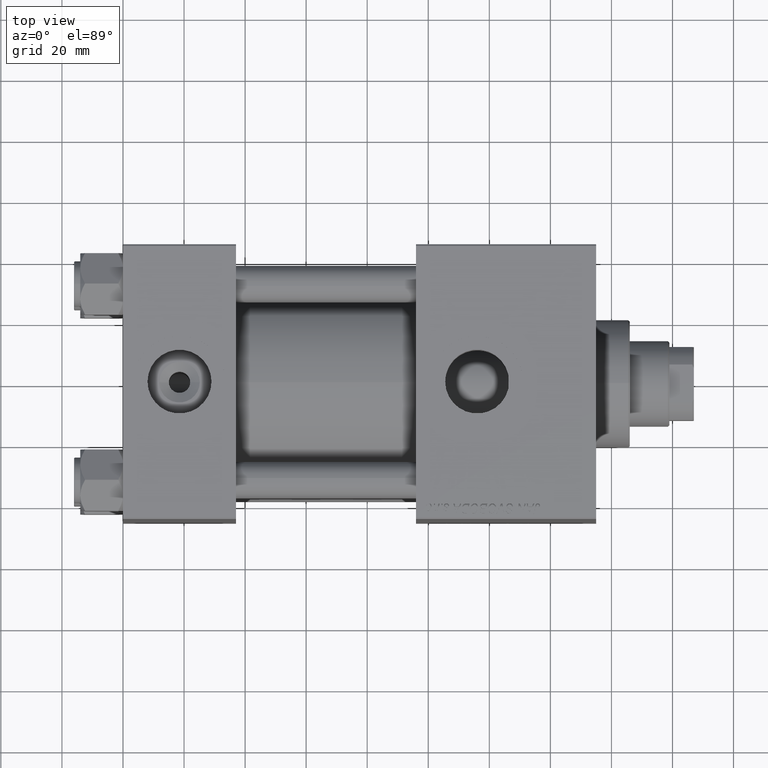
[diagram: clean part render]
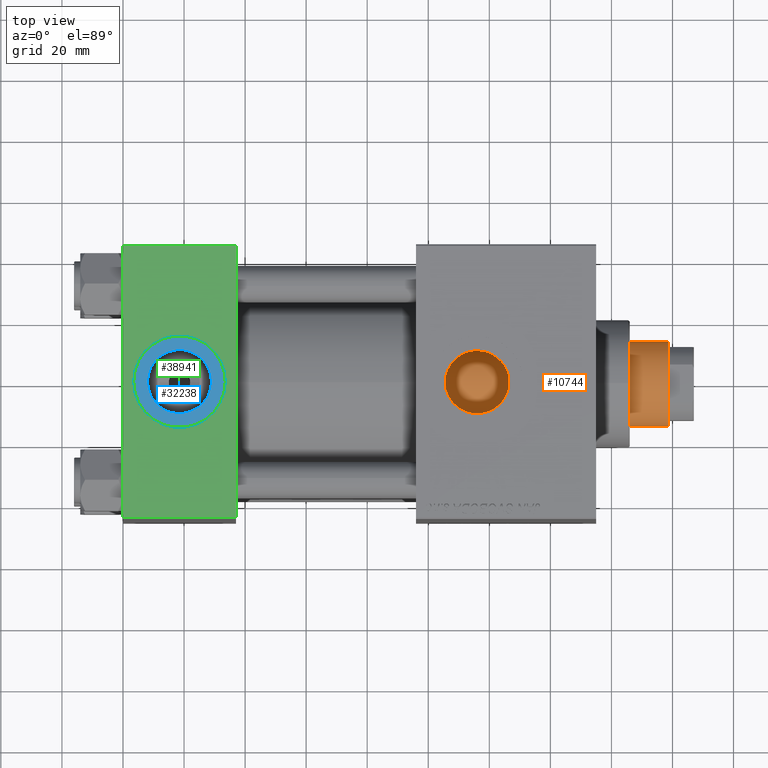
[diagram: same view with three faces highlighted in distinct colors, each labeled with its STEP entity id]
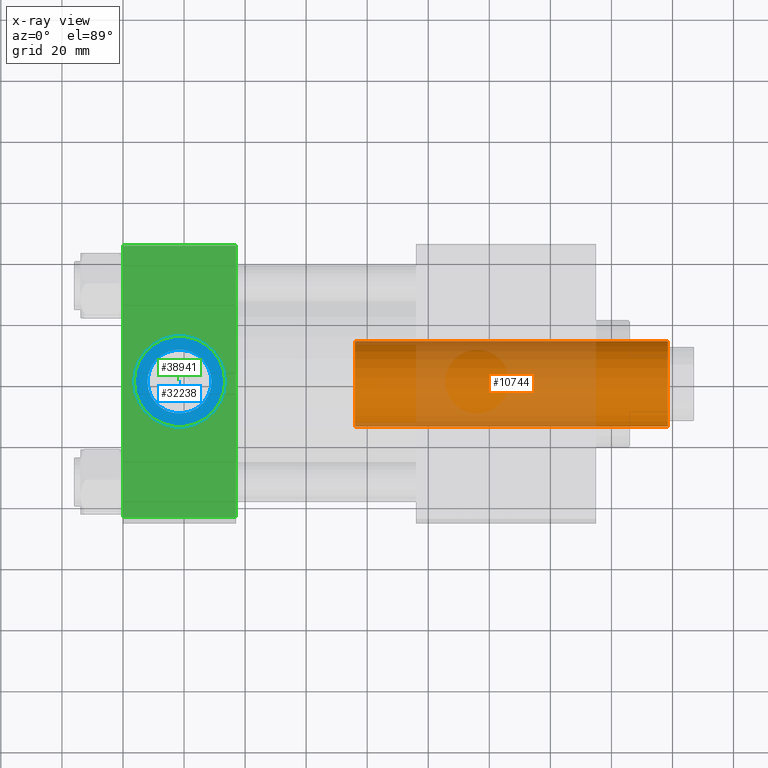
[diagram: x-ray of the same camera — body ghosted, the three highlighted faces saturated]
A machine part, top view with three faces highlighted in distinct colors.
The next image is the same camera in x-ray (body ghosted, the three faces saturated) — at least one of them is partly hidden behind the body in this view.
Their STEP definitions:

[orange] entity #10744 — the highlighted cylindrical surface (partial cylindrical patch) has radius 14 mm, axis along (-1, 0, 0).
#1506 = ORIENTED_EDGE ( 'NONE', *, *, #7720, .F. ) ;
#1656 = FACE_OUTER_BOUND ( 'NONE', #37820, .T. ) ;
#3260 = LINE ( 'NONE', #26465, #29979 ) ;
#4829 = VERTEX_POINT ( 'NONE', #9391 ) ;
#5659 = DIRECTION ( 'NONE',  ( 1.000000000000000000, 0.000000000000000000, 0.000000000000000000 ) ) ;
#6609 = DIRECTION ( 'NONE',  ( -0.000000000000000000, -0.000000000000000000, -1.000000000000000000 ) ) ;
#7720 = EDGE_CURVE ( 'NONE', #15248, #44490, #3260, .T. ) ;
#8184 = CIRCLE ( 'NONE', #35022, 14.00000000000000178 ) ;
#8930 = CARTESIAN_POINT ( 'NONE',  ( -14.00000000000000178, 0.000000000000000000, 39.00000000000000000 ) ) ;
#9391 = CARTESIAN_POINT ( 'NONE',  ( -14.00000000000000178, 0.000000000000000000, 141.5000000000000000 ) ) ;
#9932 = EDGE_CURVE ( 'NONE', #15248, #4829, #22444, .T. ) ;
#10744 = ADVANCED_FACE ( 'NONE', ( #1656 ), #48031, .T. ) ;
#15217 = DIRECTION ( 'NONE',  ( 0.000000000000000000, 0.000000000000000000, -1.000000000000000000 ) ) ;
#15248 = VERTEX_POINT ( 'NONE', #45392 ) ;
#16971 = CARTESIAN_POINT ( 'NONE',  ( 0.000000000000000000, 0.000000000000000000, 142.0000000000000000 ) ) ;
#17414 = CARTESIAN_POINT ( 'NONE',  ( 0.000000000000000000, 0.000000000000000000, 39.00000000000000000 ) ) ;
#19053 = CARTESIAN_POINT ( 'NONE',  ( 0.000000000000000000, 0.000000000000000000, 141.5000000000000000 ) ) ;
#20483 = DIRECTION ( 'NONE',  ( 0.000000000000000000, 0.000000000000000000, 1.000000000000000000 ) ) ;
#22296 = VECTOR ( 'NONE', #6609, 1000.000000000000000 ) ;
#22444 = CIRCLE ( 'NONE', #36251, 14.00000000000000178 ) ;
#23863 = VERTEX_POINT ( 'NONE', #8930 ) ;
#26465 = CARTESIAN_POINT ( 'NONE',  ( 14.00000000000000178, 1.714505518806294835E-15, 142.0000000000000000 ) ) ;
#28742 = ORIENTED_EDGE ( 'NONE', *, *, #49522, .T. ) ;
#29800 = CARTESIAN_POINT ( 'NONE',  ( -14.00000000000000178, 0.000000000000000000, 142.0000000000000000 ) ) ;
#29979 = VECTOR ( 'NONE', #33840, 1000.000000000000000 ) ;
#30735 = DIRECTION ( 'NONE',  ( 1.000000000000000000, 0.000000000000000000, 0.000000000000000000 ) ) ;
#32484 = DIRECTION ( 'NONE',  ( -0.000000000000000000, -0.000000000000000000, -1.000000000000000000 ) ) ;
#32735 = DIRECTION ( 'NONE',  ( -1.000000000000000000, 0.000000000000000000, 0.000000000000000000 ) ) ;
#33380 = CARTESIAN_POINT ( 'NONE',  ( 14.00000000000000178, 1.714505518806294835E-15, 39.00000000000000000 ) ) ;
#33840 = DIRECTION ( 'NONE',  ( -0.000000000000000000, -0.000000000000000000, -1.000000000000000000 ) ) ;
#34136 = ORIENTED_EDGE ( 'NONE', *, *, #9932, .T. ) ;
#35022 = AXIS2_PLACEMENT_3D ( 'NONE', #17414, #20483, #5659 ) ;
#36251 = AXIS2_PLACEMENT_3D ( 'NONE', #19053, #15217, #30735 ) ;
#37820 = EDGE_LOOP ( 'NONE', ( #1506, #34136, #28742, #39603 ) ) ;
#39603 = ORIENTED_EDGE ( 'NONE', *, *, #41659, .T. ) ;
#41512 = LINE ( 'NONE', #29800, #22296 ) ;
#41659 = EDGE_CURVE ( 'NONE', #23863, #44490, #8184, .T. ) ;
#44490 = VERTEX_POINT ( 'NONE', #33380 ) ;
#45392 = CARTESIAN_POINT ( 'NONE',  ( 14.00000000000000178, 1.714505518806294835E-15, 141.5000000000000000 ) ) ;
#47663 = AXIS2_PLACEMENT_3D ( 'NONE', #16971, #32484, #32735 ) ;
#48031 = CYLINDRICAL_SURFACE ( 'NONE', #47663, 14.00000000000000178 ) ;
#49522 = EDGE_CURVE ( 'NONE', #4829, #23863, #41512, .T. ) ;

[blue] entity #32238 — the highlighted planar face has unit normal (0, 0, 1).
#27 = EDGE_CURVE ( 'NONE', #42885, #18577, #7736, .T. ) ;
#1079 = CARTESIAN_POINT ( 'NONE',  ( 33.50000000000000000, -8.673617379884038628E-15, 44.80000000000000426 ) ) ;
#3341 = EDGE_CURVE ( 'NONE', #46537, #37973, #37186, .T. ) ;
#4507 = AXIS2_PLACEMENT_3D ( 'NONE', #41822, #34420, #10759 ) ;
#4897 = EDGE_LOOP ( 'NONE', ( #36716, #34524 ) ) ;
#6341 = CARTESIAN_POINT ( 'NONE',  ( 18.50000000000000000, -8.673617379884038628E-15, 44.80000000000000426 ) ) ;
#7736 = CIRCLE ( 'NONE', #4507, 10.48000000000000043 ) ;
#10180 = FACE_BOUND ( 'NONE', #36989, .T. ) ;
#10759 = DIRECTION ( 'NONE',  ( 1.000000000000000000, 0.000000000000000000, 0.000000000000000000 ) ) ;
#12085 = DIRECTION ( 'NONE',  ( 1.000000000000000000, 0.000000000000000000, 0.000000000000000000 ) ) ;
#14510 = DIRECTION ( 'NONE',  ( 0.000000000000000000, 0.000000000000000000, 1.000000000000000000 ) ) ;
#15338 = DIRECTION ( 'NONE',  ( 1.000000000000000000, 0.000000000000000000, 0.000000000000000000 ) ) ;
#15586 = CARTESIAN_POINT ( 'NONE',  ( 18.50000000000000000, -8.673617379884038628E-15, 44.80000000000000426 ) ) ;
#15764 = CARTESIAN_POINT ( 'NONE',  ( 8.019999999999999574, -7.390187534377611561E-15, 44.80000000000000426 ) ) ;
#18577 = VERTEX_POINT ( 'NONE', #43756 ) ;
#19170 = CARTESIAN_POINT ( 'NONE',  ( 18.50000000000000000, -8.673617379884038628E-15, 44.80000000000000426 ) ) ;
#19500 = CARTESIAN_POINT ( 'NONE',  ( 18.50000000000000000, -8.673617379884038628E-15, 44.80000000000000426 ) ) ;
#19674 = DIRECTION ( 'NONE',  ( 1.000000000000000000, 0.000000000000000000, 0.000000000000000000 ) ) ;
#22404 = DIRECTION ( 'NONE',  ( 1.000000000000000000, 0.000000000000000000, -0.000000000000000000 ) ) ;
#25722 = FACE_OUTER_BOUND ( 'NONE', #4897, .T. ) ;
#28647 = CIRCLE ( 'NONE', #49805, 15.00000000000000355 ) ;
#31186 = DIRECTION ( 'NONE',  ( 0.000000000000000000, 0.000000000000000000, 1.000000000000000000 ) ) ;
#32238 = ADVANCED_FACE ( 'NONE', ( #10180, #25722 ), #41249, .T. ) ;
#32679 = ORIENTED_EDGE ( 'NONE', *, *, #35988, .F. ) ;
#32939 = EDGE_CURVE ( 'NONE', #37973, #46537, #28647, .T. ) ;
#34420 = DIRECTION ( 'NONE',  ( 0.000000000000000000, 0.000000000000000000, 1.000000000000000000 ) ) ;
#34524 = ORIENTED_EDGE ( 'NONE', *, *, #3341, .T. ) ;
#35988 = EDGE_CURVE ( 'NONE', #18577, #42885, #47463, .T. ) ;
#36716 = ORIENTED_EDGE ( 'NONE', *, *, #32939, .T. ) ;
#36989 = EDGE_LOOP ( 'NONE', ( #32679, #45484 ) ) ;
#37186 = CIRCLE ( 'NONE', #44493, 15.00000000000000355 ) ;
#37693 = AXIS2_PLACEMENT_3D ( 'NONE', #19500, #31186, #12085 ) ;
#37973 = VERTEX_POINT ( 'NONE', #1079 ) ;
#41236 = CARTESIAN_POINT ( 'NONE',  ( 3.499999999999997780, -6.836647181163008250E-15, 44.80000000000000426 ) ) ;
#41249 = PLANE ( 'NONE',  #43249 ) ;
#41822 = CARTESIAN_POINT ( 'NONE',  ( 18.50000000000000000, -8.673617379884038628E-15, 44.80000000000000426 ) ) ;
#42333 = DIRECTION ( 'NONE',  ( 0.000000000000000000, 0.000000000000000000, 1.000000000000000000 ) ) ;
#42885 = VERTEX_POINT ( 'NONE', #15764 ) ;
#43249 = AXIS2_PLACEMENT_3D ( 'NONE', #6341, #14510, #22404 ) ;
#43756 = CARTESIAN_POINT ( 'NONE',  ( 28.98000000000000043, -8.673617379884038628E-15, 44.80000000000000426 ) ) ;
#44493 = AXIS2_PLACEMENT_3D ( 'NONE', #19170, #50212, #15338 ) ;
#45484 = ORIENTED_EDGE ( 'NONE', *, *, #27, .F. ) ;
#46537 = VERTEX_POINT ( 'NONE', #41236 ) ;
#47463 = CIRCLE ( 'NONE', #37693, 10.48000000000000043 ) ;
#49805 = AXIS2_PLACEMENT_3D ( 'NONE', #15586, #42333, #19674 ) ;
#50212 = DIRECTION ( 'NONE',  ( 0.000000000000000000, 0.000000000000000000, 1.000000000000000000 ) ) ;

[green] entity #38941 — the highlighted planar face has unit normal (0, 0, -1).
#370 = CARTESIAN_POINT ( 'NONE',  ( 3.499999999999997780, -6.836647181163008250E-15, 45.00000000000000711 ) ) ;
#1026 = ORIENTED_EDGE ( 'NONE', *, *, #45078, .F. ) ;
#2142 = VECTOR ( 'NONE', #11281, 1000.000000000000000 ) ;
#3035 = EDGE_CURVE ( 'NONE', #20334, #32022, #16404, .T. ) ;
#5873 = CIRCLE ( 'NONE', #29488, 15.00000000000000355 ) ;
#6169 = PLANE ( 'NONE',  #27625 ) ;
#10005 = DIRECTION ( 'NONE',  ( 0.000000000000000000, 1.541976423090495633E-16, -1.000000000000000000 ) ) ;
#10258 = FACE_BOUND ( 'NONE', #14023, .T. ) ;
#10924 = EDGE_CURVE ( 'NONE', #20334, #33551, #36802, .T. ) ;
#11156 = CARTESIAN_POINT ( 'NONE',  ( 33.50000000000000000, -8.673617379884038628E-15, 45.00000000000000711 ) ) ;
#11281 = DIRECTION ( 'NONE',  ( -1.000000000000000000, 0.000000000000000000, 0.000000000000000000 ) ) ;
#11928 = VERTEX_POINT ( 'NONE', #16381 ) ;
#14023 = EDGE_LOOP ( 'NONE', ( #22104, #1026 ) ) ;
#14964 = DIRECTION ( 'NONE',  ( 0.000000000000000000, -1.000000000000000000, -1.541976423090495387E-16 ) ) ;
#16381 = CARTESIAN_POINT ( 'NONE',  ( 0.000000000000000000, -44.49999999999995737, 45.00000000000000000 ) ) ;
#16404 = LINE ( 'NONE', #39564, #28998 ) ;
#20334 = VERTEX_POINT ( 'NONE', #41718 ) ;
#21105 = CIRCLE ( 'NONE', #43836, 15.00000000000000355 ) ;
#22104 = ORIENTED_EDGE ( 'NONE', *, *, #22321, .F. ) ;
#22321 = EDGE_CURVE ( 'NONE', #36486, #24333, #21105, .T. ) ;
#22659 = ORIENTED_EDGE ( 'NONE', *, *, #10924, .T. ) ;
#24293 = DIRECTION ( 'NONE',  ( 0.000000000000000000, 0.000000000000000000, 1.000000000000000000 ) ) ;
#24333 = VERTEX_POINT ( 'NONE', #370 ) ;
#24677 = ORIENTED_EDGE ( 'NONE', *, *, #49962, .T. ) ;
#25334 = CARTESIAN_POINT ( 'NONE',  ( 0.000000000000000000, 44.49999999999998579, 45.00000000000001421 ) ) ;
#25415 = DIRECTION ( 'NONE',  ( 1.000000000000000000, 0.000000000000000000, 0.000000000000000000 ) ) ;
#25859 = CARTESIAN_POINT ( 'NONE',  ( 37.00000000000000000, -44.49999999999995737, 45.00000000000000000 ) ) ;
#27612 = DIRECTION ( 'NONE',  ( 1.000000000000000000, 0.000000000000000000, 0.000000000000000000 ) ) ;
#27625 = AXIS2_PLACEMENT_3D ( 'NONE', #38009, #10005, #42074 ) ;
#28998 = VECTOR ( 'NONE', #43137, 1000.000000000000000 ) ;
#29488 = AXIS2_PLACEMENT_3D ( 'NONE', #46972, #24293, #27612 ) ;
#30541 = EDGE_LOOP ( 'NONE', ( #24677, #43339, #31646, #22659 ) ) ;
#31211 = VECTOR ( 'NONE', #48590, 1000.000000000000000 ) ;
#31646 = ORIENTED_EDGE ( 'NONE', *, *, #3035, .F. ) ;
#32022 = VERTEX_POINT ( 'NONE', #25859 ) ;
#32543 = DIRECTION ( 'NONE',  ( 0.000000000000000000, 0.000000000000000000, 1.000000000000000000 ) ) ;
#33551 = VERTEX_POINT ( 'NONE', #41960 ) ;
#36486 = VERTEX_POINT ( 'NONE', #11156 ) ;
#36802 = LINE ( 'NONE', #25334, #2142 ) ;
#38009 = CARTESIAN_POINT ( 'NONE',  ( 37.00000000000000000, 44.99999999999998579, 45.00000000000001421 ) ) ;
#38871 = CARTESIAN_POINT ( 'NONE',  ( 0.000000000000000000, 44.99999999999998579, 45.00000000000001421 ) ) ;
#38941 = ADVANCED_FACE ( 'NONE', ( #10258, #49969 ), #6169, .F. ) ;
#39389 = VECTOR ( 'NONE', #14964, 1000.000000000000000 ) ;
#39564 = CARTESIAN_POINT ( 'NONE',  ( 37.00000000000000000, 44.99999999999998579, 45.00000000000001421 ) ) ;
#41718 = CARTESIAN_POINT ( 'NONE',  ( 37.00000000000000000, 44.49999999999998579, 45.00000000000001421 ) ) ;
#41960 = CARTESIAN_POINT ( 'NONE',  ( 0.000000000000000000, 44.49999999999998579, 45.00000000000001421 ) ) ;
#42074 = DIRECTION ( 'NONE',  ( 0.000000000000000000, 1.000000000000000000, 1.541976423090495633E-16 ) ) ;
#43137 = DIRECTION ( 'NONE',  ( 0.000000000000000000, -1.000000000000000000, -1.541976423090495387E-16 ) ) ;
#43339 = ORIENTED_EDGE ( 'NONE', *, *, #48607, .T. ) ;
#43836 = AXIS2_PLACEMENT_3D ( 'NONE', #44265, #32543, #25415 ) ;
#44265 = CARTESIAN_POINT ( 'NONE',  ( 18.50000000000000000, -8.673617379884038628E-15, 45.00000000000000711 ) ) ;
#45078 = EDGE_CURVE ( 'NONE', #24333, #36486, #5873, .T. ) ;
#46517 = LINE ( 'NONE', #38871, #39389 ) ;
#46972 = CARTESIAN_POINT ( 'NONE',  ( 18.50000000000000000, -8.673617379884038628E-15, 45.00000000000000711 ) ) ;
#47570 = LINE ( 'NONE', #47819, #31211 ) ;
#47819 = CARTESIAN_POINT ( 'NONE',  ( 37.00000000000000000, -44.49999999999998579, 45.00000000000000000 ) ) ;
#48590 = DIRECTION ( 'NONE',  ( 1.000000000000000000, 0.000000000000000000, 0.000000000000000000 ) ) ;
#48607 = EDGE_CURVE ( 'NONE', #11928, #32022, #47570, .T. ) ;
#49962 = EDGE_CURVE ( 'NONE', #33551, #11928, #46517, .T. ) ;
#49969 = FACE_OUTER_BOUND ( 'NONE', #30541, .T. ) ;